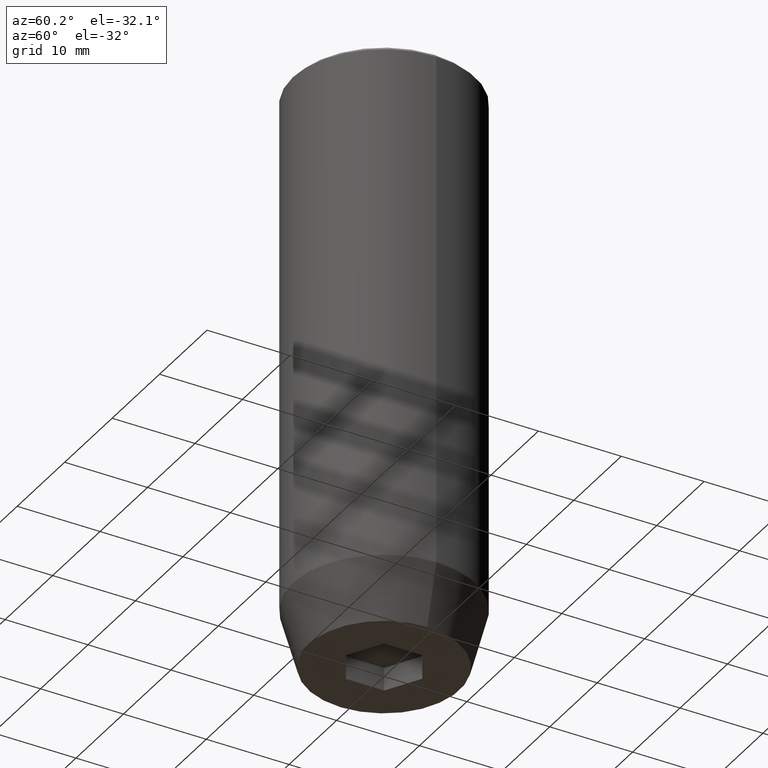
[diagram: clean part render]
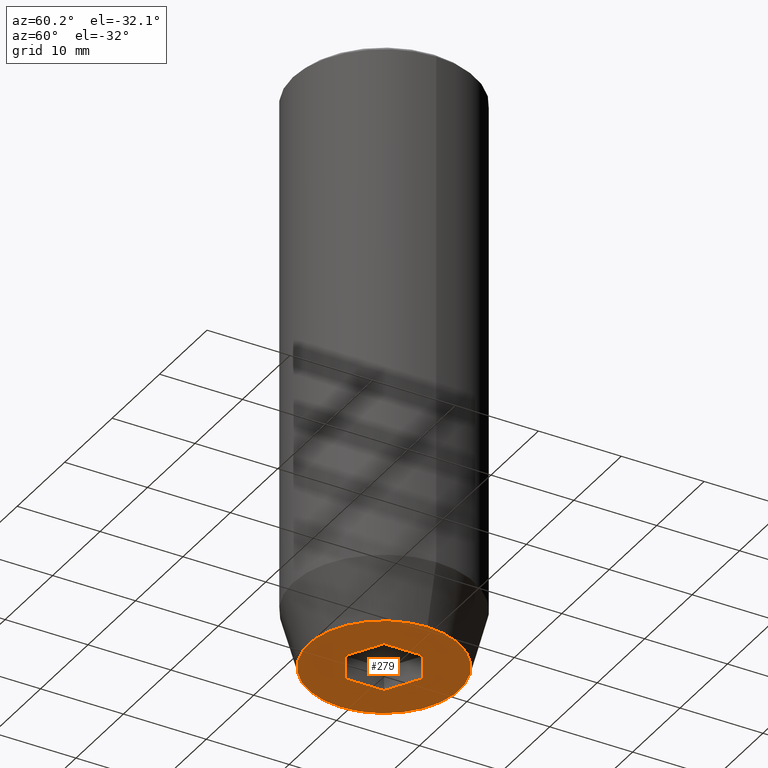
[diagram: same view with one face highlighted and labeled with its STEP entity id]
A machine part, auxiliary view. The second image highlights one B-rep face of the part: STEP entity #279.
In plain terms, the highlighted planar face has unit normal (0, 0, -1).
Its self-contained STEP definition (entity closure, byte-faithful):
#1 = DIRECTION ( 'NONE',  ( 1.000000000000000000, 0.000000000000000000, 0.000000000000000000 ) ) ;
#7 = LINE ( 'NONE', #193, #198 ) ;
#14 = ORIENTED_EDGE ( 'NONE', *, *, #151, .F. ) ;
#17 = CARTESIAN_POINT ( 'NONE',  ( -4.000000000000000000, 0.000000000000000000, -70.00000000000000000 ) ) ;
#32 = ORIENTED_EDGE ( 'NONE', *, *, #518, .F. ) ;
#36 = LINE ( 'NONE', #359, #374 ) ;
#37 = VECTOR ( 'NONE', #47, 999.9999999999998863 ) ;
#38 = DIRECTION ( 'NONE',  ( 1.000000000000000000, 0.000000000000000000, 0.000000000000000000 ) ) ;
#43 = CARTESIAN_POINT ( 'NONE',  ( -2.000000000000000000, 3.464101615137754830, -70.00000000000000000 ) ) ;
#47 = DIRECTION ( 'NONE',  ( 0.8660254037844387076, 0.5000000000000001110, 0.000000000000000000 ) ) ;
#59 = ORIENTED_EDGE ( 'NONE', *, *, #159, .F. ) ;
#64 = VERTEX_POINT ( 'NONE', #535 ) ;
#66 = VERTEX_POINT ( 'NONE', #405 ) ;
#75 = ORIENTED_EDGE ( 'NONE', *, *, #259, .F. ) ;
#78 = VECTOR ( 'NONE', #92, 1000.000000000000000 ) ;
#84 = CIRCLE ( 'NONE', #156, 9.124355652982133691 ) ;
#86 = EDGE_LOOP ( 'NONE', ( #465, #424 ) ) ;
#90 = FACE_BOUND ( 'NONE', #477, .T. ) ;
#92 = DIRECTION ( 'NONE',  ( 0.000000000000000000, -1.000000000000000000, 0.000000000000000000 ) ) ;
#110 = DIRECTION ( 'NONE',  ( 0.000000000000000000, 1.000000000000000000, 0.000000000000000000 ) ) ;
#151 = EDGE_CURVE ( 'NONE', #304, #64, #7, .T. ) ;
#153 = VERTEX_POINT ( 'NONE', #370 ) ;
#156 = AXIS2_PLACEMENT_3D ( 'NONE', #574, #449, #38 ) ;
#159 = EDGE_CURVE ( 'NONE', #205, #469, #555, .T. ) ;
#166 = DIRECTION ( 'NONE',  ( -0.8660254037844384856, 0.5000000000000002220, 0.000000000000000000 ) ) ;
#186 = CARTESIAN_POINT ( 'NONE',  ( 0.000000000000000000, 0.000000000000000000, -70.00000000000000000 ) ) ;
#193 = CARTESIAN_POINT ( 'NONE',  ( 2.000000000000000444, 3.464101615137754386, -70.00000000000000000 ) ) ;
#198 = VECTOR ( 'NONE', #376, 1000.000000000000000 ) ;
#205 = VERTEX_POINT ( 'NONE', #389 ) ;
#214 = EDGE_CURVE ( 'NONE', #66, #484, #84, .T. ) ;
#215 = ORIENTED_EDGE ( 'NONE', *, *, #483, .F. ) ;
#223 = LINE ( 'NONE', #43, #37 ) ;
#225 = PLANE ( 'NONE',  #227 ) ;
#226 = EDGE_CURVE ( 'NONE', #153, #205, #490, .T. ) ;
#227 = AXIS2_PLACEMENT_3D ( 'NONE', #368, #237, #550 ) ;
#237 = DIRECTION ( 'NONE',  ( 0.000000000000000000, 0.000000000000000000, -1.000000000000000000 ) ) ;
#259 = EDGE_CURVE ( 'NONE', #469, #304, #223, .T. ) ;
#271 = DIRECTION ( 'NONE',  ( -0.8660254037844384856, -0.5000000000000002220, 0.000000000000000000 ) ) ;
#279 = ADVANCED_FACE ( 'NONE', ( #90, #419 ), #225, .T. ) ;
#304 = VERTEX_POINT ( 'NONE', #410 ) ;
#307 = EDGE_CURVE ( 'NONE', #484, #66, #430, .T. ) ;
#310 = CARTESIAN_POINT ( 'NONE',  ( -9.124355652982133691, 1.232261386766375507E-15, -70.00000000000000000 ) ) ;
#320 = DIRECTION ( 'NONE',  ( -0.000000000000000000, -0.000000000000000000, 1.000000000000000000 ) ) ;
#336 = AXIS2_PLACEMENT_3D ( 'NONE', #186, #320, #1 ) ;
#357 = ORIENTED_EDGE ( 'NONE', *, *, #226, .F. ) ;
#359 = CARTESIAN_POINT ( 'NONE',  ( 2.000000000000000888, -3.464101615137754386, -70.00000000000000000 ) ) ;
#368 = CARTESIAN_POINT ( 'NONE',  ( 0.000000000000000000, 9.124355652982133691, -70.00000000000000000 ) ) ;
#370 = CARTESIAN_POINT ( 'NONE',  ( 4.336808689942017736E-16, -4.618802153517006737, -70.00000000000000000 ) ) ;
#374 = VECTOR ( 'NONE', #271, 1000.000000000000114 ) ;
#376 = DIRECTION ( 'NONE',  ( 0.8660254037844385966, -0.5000000000000001110, 0.000000000000000000 ) ) ;
#389 = CARTESIAN_POINT ( 'NONE',  ( -4.000000000000000000, -2.309401076758503368, -70.00000000000000000 ) ) ;
#390 = VECTOR ( 'NONE', #166, 1000.000000000000114 ) ;
#405 = CARTESIAN_POINT ( 'NONE',  ( 9.124355652982133691, 0.000000000000000000, -70.00000000000000000 ) ) ;
#410 = CARTESIAN_POINT ( 'NONE',  ( 2.168404344971008868E-16, 4.618802153517006737, -70.00000000000000000 ) ) ;
#419 = FACE_OUTER_BOUND ( 'NONE', #86, .T. ) ;
#424 = ORIENTED_EDGE ( 'NONE', *, *, #307, .F. ) ;
#430 = CIRCLE ( 'NONE', #336, 9.124355652982133691 ) ;
#445 = CARTESIAN_POINT ( 'NONE',  ( -2.000000000000000888, -3.464101615137754386, -70.00000000000000000 ) ) ;
#448 = CARTESIAN_POINT ( 'NONE',  ( -4.000000000000000000, 2.309401076758503368, -70.00000000000000000 ) ) ;
#449 = DIRECTION ( 'NONE',  ( -0.000000000000000000, -0.000000000000000000, 1.000000000000000000 ) ) ;
#461 = LINE ( 'NONE', #493, #78 ) ;
#465 = ORIENTED_EDGE ( 'NONE', *, *, #214, .F. ) ;
#469 = VERTEX_POINT ( 'NONE', #448 ) ;
#474 = CARTESIAN_POINT ( 'NONE',  ( 4.000000000000000000, -2.309401076758502480, -70.00000000000000000 ) ) ;
#477 = EDGE_LOOP ( 'NONE', ( #75, #59, #357, #32, #215, #14 ) ) ;
#483 = EDGE_CURVE ( 'NONE', #64, #573, #461, .T. ) ;
#484 = VERTEX_POINT ( 'NONE', #310 ) ;
#490 = LINE ( 'NONE', #445, #390 ) ;
#493 = CARTESIAN_POINT ( 'NONE',  ( 4.000000000000000000, 0.000000000000000000, -70.00000000000000000 ) ) ;
#518 = EDGE_CURVE ( 'NONE', #573, #153, #36, .T. ) ;
#528 = VECTOR ( 'NONE', #110, 1000.000000000000000 ) ;
#535 = CARTESIAN_POINT ( 'NONE',  ( 4.000000000000000000, 2.309401076758503368, -70.00000000000000000 ) ) ;
#550 = DIRECTION ( 'NONE',  ( -1.000000000000000000, 0.000000000000000000, -0.000000000000000000 ) ) ;
#555 = LINE ( 'NONE', #17, #528 ) ;
#573 = VERTEX_POINT ( 'NONE', #474 ) ;
#574 = CARTESIAN_POINT ( 'NONE',  ( 0.000000000000000000, 0.000000000000000000, -70.00000000000000000 ) ) ;